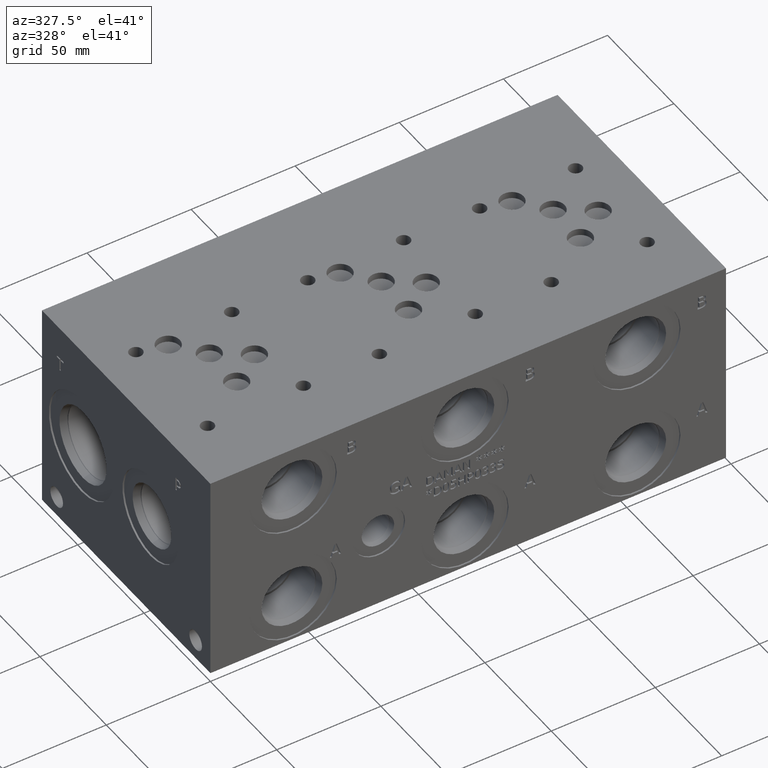
[diagram: clean part render]
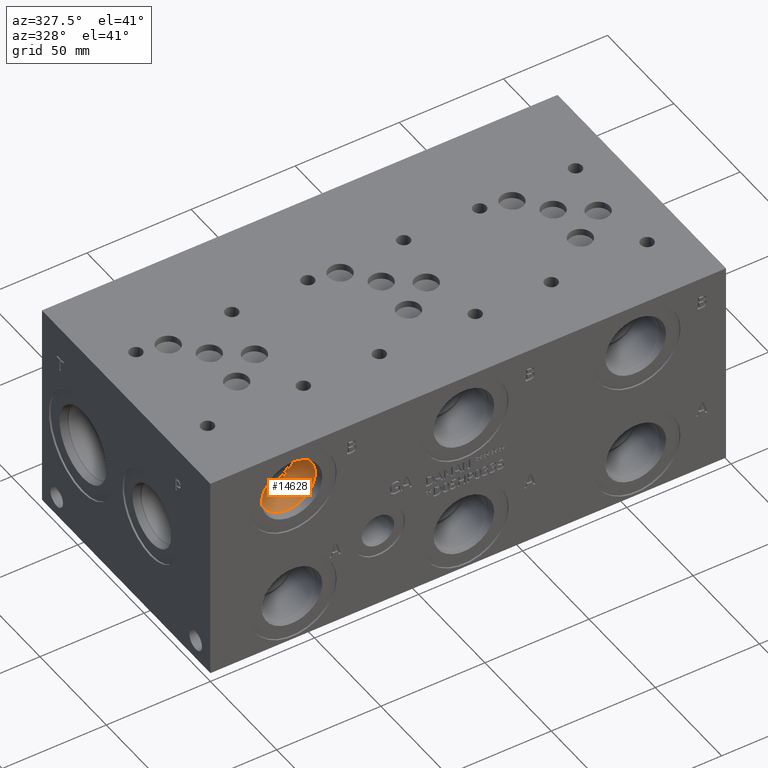
[diagram: same view with one face highlighted and labeled with its STEP entity id]
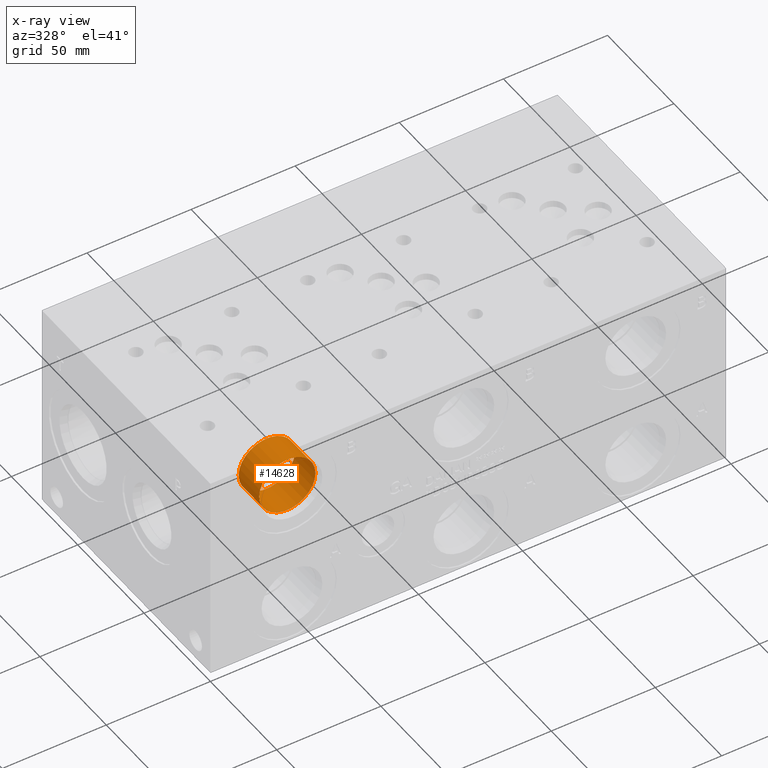
[diagram: x-ray of the same camera — body ghosted, the highlighted face saturated]
A machine part, auxiliary view. The second image highlights one B-rep face of the part: STEP entity #14628.
The next image is the same camera in x-ray: the body ghosted, the highlighted face saturated — about 0% of this face is hidden behind the body in this view.
In plain terms, the highlighted cylindrical surface (bore or boss wall) has radius 13.495 mm, axis along (0, -1, 0).
Its self-contained STEP definition (entity closure, byte-faithful):
#148=CYLINDRICAL_SURFACE('',#15450,13.495);
#605=CIRCLE('',#15447,13.495);
#606=CIRCLE('',#15448,13.495);
#608=CIRCLE('',#15451,13.495);
#1927=FACE_OUTER_BOUND('',#2779,.T.);
#2779=EDGE_LOOP('',(#12570,#12571,#12572,#12573,#12574));
#4127=LINE('',#25059,#5421);
#5421=VECTOR('',#18354,13.495);
#6730=VERTEX_POINT('',#25050);
#6731=VERTEX_POINT('',#25051);
#6733=VERTEX_POINT('',#25057);
#8728=EDGE_CURVE('',#6730,#6731,#605,.T.);
#8729=EDGE_CURVE('',#6731,#6730,#606,.T.);
#8731=EDGE_CURVE('',#6733,#6733,#608,.T.);
#8732=EDGE_CURVE('',#6733,#6731,#4127,.T.);
#12570=ORIENTED_EDGE('',*,*,#8731,.F.);
#12571=ORIENTED_EDGE('',*,*,#8732,.T.);
#12572=ORIENTED_EDGE('',*,*,#8728,.F.);
#12573=ORIENTED_EDGE('',*,*,#8729,.F.);
#12574=ORIENTED_EDGE('',*,*,#8732,.F.);
#14628=ADVANCED_FACE('',(#1927),#148,.F.);
#15447=AXIS2_PLACEMENT_3D('',#25052,#18344,#18345);
#15448=AXIS2_PLACEMENT_3D('',#25053,#18346,#18347);
#15450=AXIS2_PLACEMENT_3D('',#25056,#18350,#18351);
#15451=AXIS2_PLACEMENT_3D('',#25058,#18352,#18353);
#18344=DIRECTION('center_axis',(0.,-1.,0.));
#18345=DIRECTION('ref_axis',(1.,0.,0.));
#18346=DIRECTION('center_axis',(0.,-1.,0.));
#18347=DIRECTION('ref_axis',(1.,0.,0.));
#18350=DIRECTION('center_axis',(0.,-1.,0.));
#18351=DIRECTION('ref_axis',(1.,0.,0.));
#18352=DIRECTION('center_axis',(0.,1.,0.));
#18353=DIRECTION('ref_axis',(1.,0.,0.));
#18354=DIRECTION('',(0.,1.,0.));
#25050=CARTESIAN_POINT('',(53.1698,19.8374,79.375));
#25051=CARTESIAN_POINT('',(26.1798,19.8374,79.375));
#25052=CARTESIAN_POINT('Origin',(39.6748,19.8374,79.375));
#25053=CARTESIAN_POINT('Origin',(39.6748,19.8374,79.375));
#25056=CARTESIAN_POINT('Origin',(39.6748,9.9187,79.375));
#25057=CARTESIAN_POINT('',(26.1798,4.285,79.375));
#25058=CARTESIAN_POINT('Origin',(39.6748,4.285,79.375));
#25059=CARTESIAN_POINT('',(26.1798,9.9187,79.375));